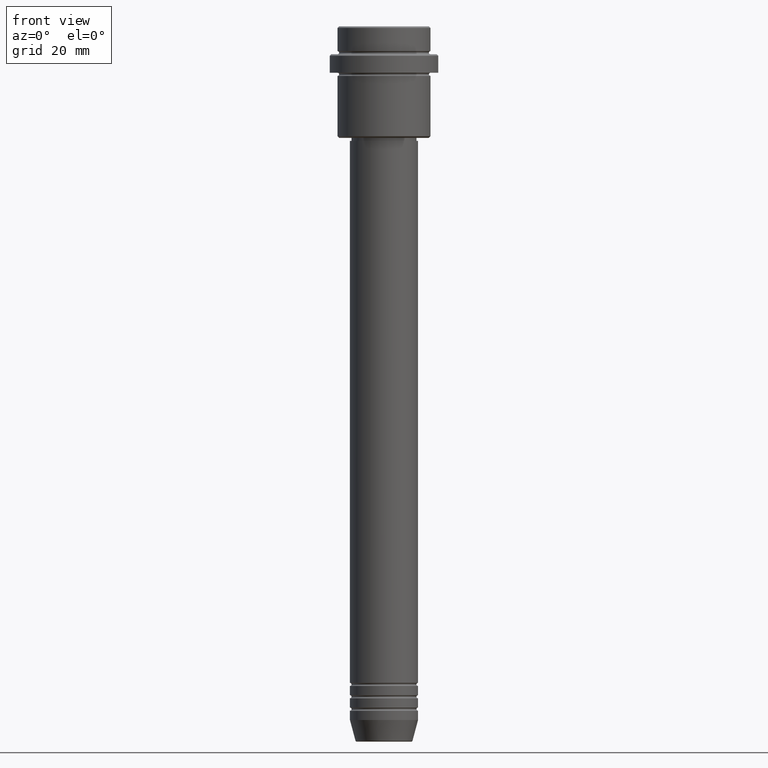
[diagram: clean part render]
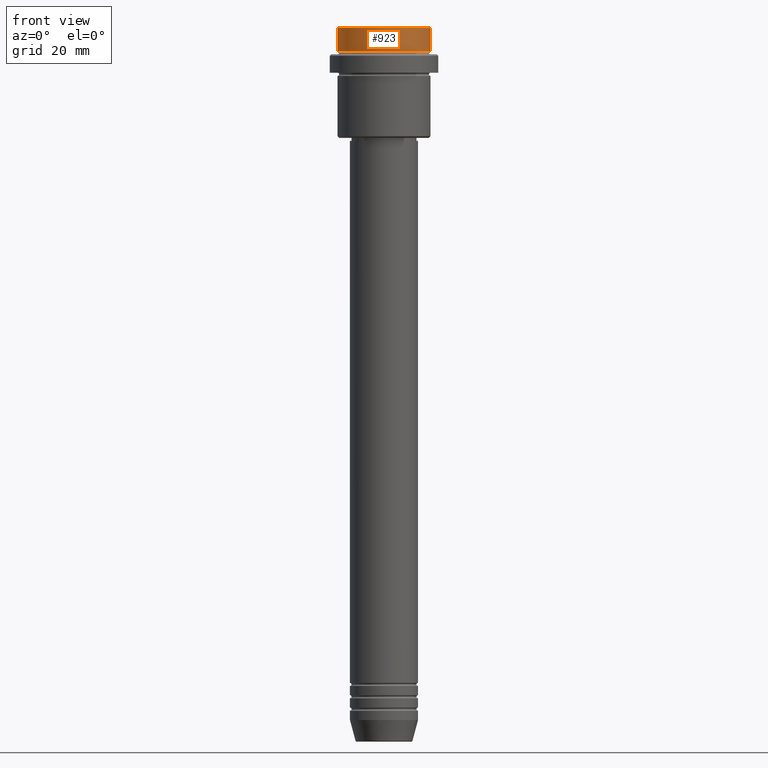
[diagram: same view with one face highlighted and labeled with its STEP entity id]
A machine part, front view. The second image highlights one B-rep face of the part: STEP entity #923.
In plain terms, the highlighted cylindrical surface (partial cylindrical patch) has radius 15 mm, axis along (-0, -0, 1).
Its self-contained STEP definition (entity closure, byte-faithful):
#1 = VECTOR ( 'NONE', #1053, 1000.000000000000000 ) ;
#64 = CIRCLE ( 'NONE', #406, 15.00000000000000000 ) ;
#112 = AXIS2_PLACEMENT_3D ( 'NONE', #456, #1225, #125 ) ;
#125 = DIRECTION ( 'NONE',  ( 1.000000000000000000, 0.000000000000000000, 0.000000000000000000 ) ) ;
#170 = ORIENTED_EDGE ( 'NONE', *, *, #979, .T. ) ;
#175 = AXIS2_PLACEMENT_3D ( 'NONE', #904, #1340, #1120 ) ;
#244 = CARTESIAN_POINT ( 'NONE',  ( 15.00000000000000000, 0.000000000000000000, -7.999999999999998224 ) ) ;
#259 = VERTEX_POINT ( 'NONE', #1165 ) ;
#299 = CARTESIAN_POINT ( 'NONE',  ( -15.00000000000000000, 1.836970198721029589E-15, 0.000000000000000000 ) ) ;
#406 = AXIS2_PLACEMENT_3D ( 'NONE', #1021, #588, #481 ) ;
#407 = LINE ( 'NONE', #417, #1 ) ;
#417 = CARTESIAN_POINT ( 'NONE',  ( 15.00000000000000000, 0.000000000000000000, 0.000000000000000000 ) ) ;
#433 = ORIENTED_EDGE ( 'NONE', *, *, #556, .T. ) ;
#456 = CARTESIAN_POINT ( 'NONE',  ( 0.000000000000000000, 0.000000000000000000, 0.000000000000000000 ) ) ;
#481 = DIRECTION ( 'NONE',  ( 1.000000000000000000, 0.000000000000000000, 0.000000000000000000 ) ) ;
#502 = CARTESIAN_POINT ( 'NONE',  ( -15.00000000000000000, 1.836970198721029589E-15, -0.5000000000000108802 ) ) ;
#556 = EDGE_CURVE ( 'NONE', #259, #1174, #634, .T. ) ;
#571 = VERTEX_POINT ( 'NONE', #244 ) ;
#588 = DIRECTION ( 'NONE',  ( -0.000000000000000000, -0.000000000000000000, 1.000000000000000000 ) ) ;
#634 = CIRCLE ( 'NONE', #175, 15.00000000000000000 ) ;
#688 = EDGE_CURVE ( 'NONE', #720, #1174, #1045, .T. ) ;
#720 = VERTEX_POINT ( 'NONE', #1058 ) ;
#780 = ORIENTED_EDGE ( 'NONE', *, *, #1372, .T. ) ;
#893 = CYLINDRICAL_SURFACE ( 'NONE', #112, 15.00000000000000000 ) ;
#904 = CARTESIAN_POINT ( 'NONE',  ( 0.000000000000000000, 0.000000000000000000, -0.5000000000000108802 ) ) ;
#923 = ADVANCED_FACE ( 'NONE', ( #1105 ), #893, .T. ) ;
#979 = EDGE_CURVE ( 'NONE', #720, #571, #64, .T. ) ;
#1021 = CARTESIAN_POINT ( 'NONE',  ( 0.000000000000000000, 0.000000000000000000, -7.999999999999998224 ) ) ;
#1045 = LINE ( 'NONE', #299, #1413 ) ;
#1053 = DIRECTION ( 'NONE',  ( -0.000000000000000000, -0.000000000000000000, 1.000000000000000000 ) ) ;
#1058 = CARTESIAN_POINT ( 'NONE',  ( -15.00000000000000000, 1.836970198721029589E-15, -7.999999999999998224 ) ) ;
#1105 = FACE_OUTER_BOUND ( 'NONE', #1388, .T. ) ;
#1120 = DIRECTION ( 'NONE',  ( 1.000000000000000000, 0.000000000000000000, 0.000000000000000000 ) ) ;
#1165 = CARTESIAN_POINT ( 'NONE',  ( 15.00000000000000000, 0.000000000000000000, -0.5000000000000108802 ) ) ;
#1174 = VERTEX_POINT ( 'NONE', #502 ) ;
#1225 = DIRECTION ( 'NONE',  ( -0.000000000000000000, -0.000000000000000000, 1.000000000000000000 ) ) ;
#1340 = DIRECTION ( 'NONE',  ( 0.000000000000000000, 0.000000000000000000, -1.000000000000000000 ) ) ;
#1355 = ORIENTED_EDGE ( 'NONE', *, *, #688, .F. ) ;
#1372 = EDGE_CURVE ( 'NONE', #571, #259, #407, .T. ) ;
#1376 = DIRECTION ( 'NONE',  ( -0.000000000000000000, -0.000000000000000000, 1.000000000000000000 ) ) ;
#1388 = EDGE_LOOP ( 'NONE', ( #1355, #170, #780, #433 ) ) ;
#1413 = VECTOR ( 'NONE', #1376, 1000.000000000000000 ) ;